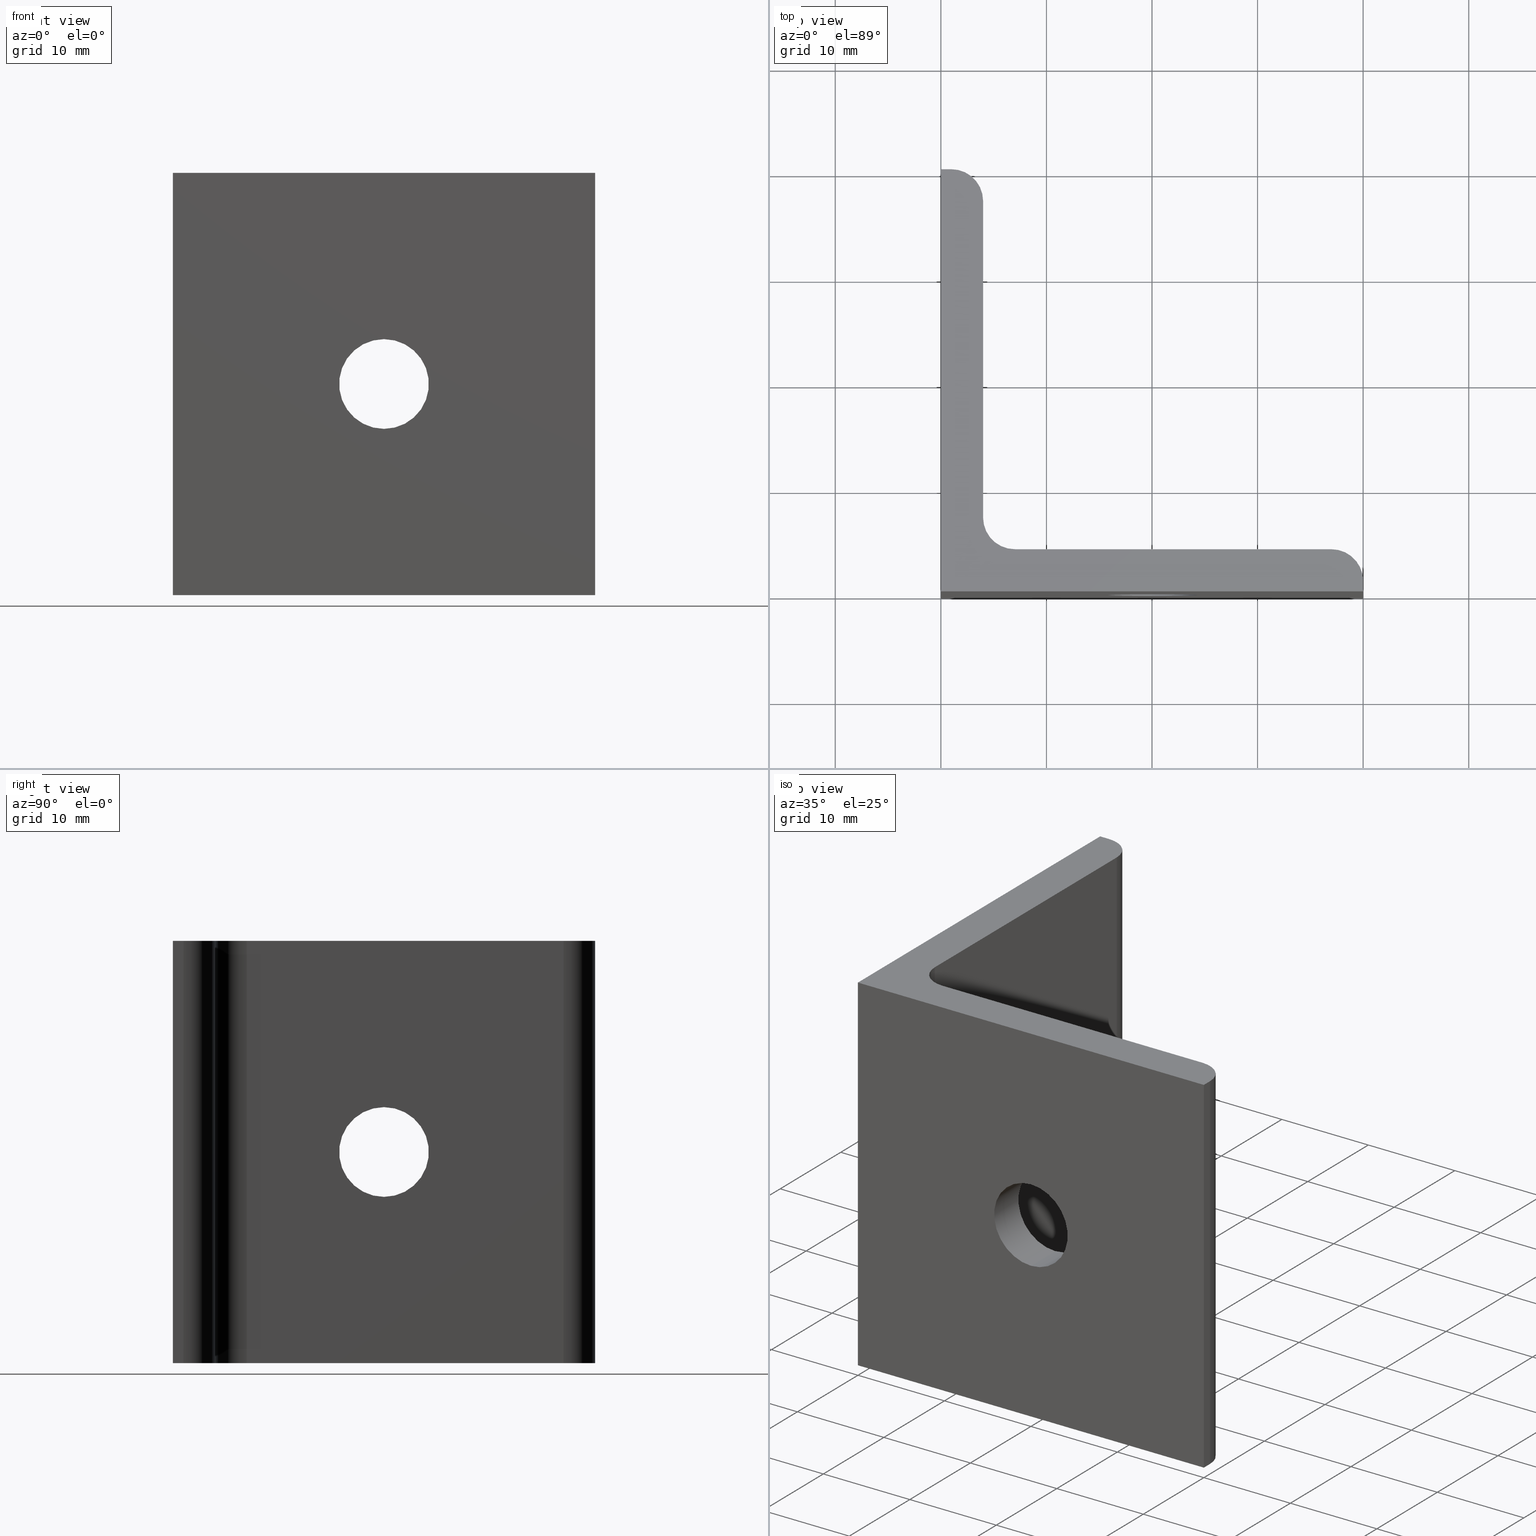
[diagram: canonical four-view strip — front | top / right | iso, engineering-drawing reading convention]
A machine part, canonical four-view strip (front | top / right | iso — engineering-drawing reading convention). The complete STEP part file that produces these views, byte-faithful:
ISO-10303-21;
HEADER;
/* Generated by software containing ST-Developer
 * from STEP Tools, Inc. (www.steptools.com) 
 */

FILE_DESCRIPTION(
/* description */ ('SQUADRETTA 40x40x40 L'),
/* implementation_level */ '2;1');

FILE_NAME(
/* name */ 
'Q:\\Catalogo\\2_Accessori Dierre\\Per Download Web e catalogo cartace
o\\CATALOGO ELEMENTI ASSEMBLAGGIO\\PAGINA 31\\DSQAL0000019.stp',
/* time_stamp */ '2018-06-11T14:54:31+02:00',
/* author */ ('fzagni'),
/* organization */ (''),
/* preprocessor_version */ 'ST-DEVELOPER v16.1',
/* originating_system */ 'Autodesk Inventor 2016',
/* authorisation */ '');

FILE_SCHEMA (('AUTOMOTIVE_DESIGN { 1 0 10303 214 3 1 1 }'));
ENDSEC;

DATA;
#10=MECHANICAL_DESIGN_GEOMETRIC_PRESENTATION_REPRESENTATION('',(#13),#410);
#11=SHAPE_REPRESENTATION_RELATIONSHIP('SRR','None',#419,#12);
#12=ADVANCED_BREP_SHAPE_REPRESENTATION('',(#14),#409);
#13=STYLED_ITEM('',(#428),#14);
#14=MANIFOLD_SOLID_BREP('Importato1',#246);
#15=LINE('',#354,#36);
#16=LINE('',#356,#37);
#17=LINE('',#358,#38);
#18=LINE('',#359,#39);
#19=LINE('',#362,#40);
#20=LINE('',#364,#41);
#21=LINE('',#365,#42);
#22=LINE('',#368,#43);
#23=LINE('',#370,#44);
#24=LINE('',#371,#45);
#25=LINE('',#376,#46);
#26=LINE('',#380,#47);
#27=LINE('',#382,#48);
#28=LINE('',#383,#49);
#29=LINE('',#388,#50);
#30=LINE('',#392,#51);
#31=LINE('',#394,#52);
#32=LINE('',#395,#53);
#33=LINE('',#400,#54);
#34=LINE('',#403,#55);
#35=LINE('',#404,#56);
#36=VECTOR('',#287,40.);
#37=VECTOR('',#288,40.);
#38=VECTOR('',#289,40.);
#39=VECTOR('',#290,40.);
#40=VECTOR('',#293,40.);
#41=VECTOR('',#294,40.);
#42=VECTOR('',#295,40.);
#43=VECTOR('',#298,1.);
#44=VECTOR('',#299,40.);
#45=VECTOR('',#300,1.);
#46=VECTOR('',#305,40.);
#47=VECTOR('',#310,30.);
#48=VECTOR('',#311,40.);
#49=VECTOR('',#312,30.);
#50=VECTOR('',#317,40.);
#51=VECTOR('',#322,30.);
#52=VECTOR('',#323,40.);
#53=VECTOR('',#324,30.);
#54=VECTOR('',#329,40.);
#55=VECTOR('',#334,1.);
#56=VECTOR('',#335,1.);
#57=PLANE('',#254);
#58=PLANE('',#255);
#59=PLANE('',#256);
#60=PLANE('',#260);
#61=PLANE('',#264);
#62=PLANE('',#268);
#63=PLANE('',#269);
#64=PLANE('',#270);
#65=FACE_BOUND('',#85,.T.);
#66=FACE_BOUND('',#87,.T.);
#67=FACE_BOUND('',#89,.T.);
#68=FACE_BOUND('',#91,.T.);
#69=FACE_BOUND('',#95,.T.);
#70=FACE_BOUND('',#98,.T.);
#71=FACE_OUTER_BOUND('',#84,.T.);
#72=FACE_OUTER_BOUND('',#86,.T.);
#73=FACE_OUTER_BOUND('',#88,.T.);
#74=FACE_OUTER_BOUND('',#90,.T.);
#75=FACE_OUTER_BOUND('',#92,.T.);
#76=FACE_OUTER_BOUND('',#93,.T.);
#77=FACE_OUTER_BOUND('',#94,.T.);
#78=FACE_OUTER_BOUND('',#96,.T.);
#79=FACE_OUTER_BOUND('',#97,.T.);
#80=FACE_OUTER_BOUND('',#99,.T.);
#81=FACE_OUTER_BOUND('',#100,.T.);
#82=FACE_OUTER_BOUND('',#101,.T.);
#83=FACE_OUTER_BOUND('',#102,.T.);
#84=EDGE_LOOP('',(#166));
#85=EDGE_LOOP('',(#167));
#86=EDGE_LOOP('',(#168));
#87=EDGE_LOOP('',(#169));
#88=EDGE_LOOP('',(#170,#171,#172,#173));
#89=EDGE_LOOP('',(#174));
#90=EDGE_LOOP('',(#175,#176,#177,#178));
#91=EDGE_LOOP('',(#179));
#92=EDGE_LOOP('',(#180,#181,#182,#183));
#93=EDGE_LOOP('',(#184,#185,#186,#187));
#94=EDGE_LOOP('',(#188,#189,#190,#191));
#95=EDGE_LOOP('',(#192));
#96=EDGE_LOOP('',(#193,#194,#195,#196));
#97=EDGE_LOOP('',(#197,#198,#199,#200));
#98=EDGE_LOOP('',(#201));
#99=EDGE_LOOP('',(#202,#203,#204,#205));
#100=EDGE_LOOP('',(#206,#207,#208,#209));
#101=EDGE_LOOP('',(#210,#211,#212,#213,#214,#215,#216,#217,#218));
#102=EDGE_LOOP('',(#219,#220,#221,#222,#223,#224,#225,#226,#227));
#103=CIRCLE('',#249,4.25);
#104=CIRCLE('',#250,4.25);
#105=CIRCLE('',#252,4.25);
#106=CIRCLE('',#253,4.25000000000001);
#107=CIRCLE('',#258,3.);
#108=CIRCLE('',#259,3.);
#109=CIRCLE('',#262,3.);
#110=CIRCLE('',#263,3.);
#111=CIRCLE('',#266,3.);
#112=CIRCLE('',#267,3.);
#113=VERTEX_POINT('',#342);
#114=VERTEX_POINT('',#344);
#115=VERTEX_POINT('',#347);
#116=VERTEX_POINT('',#349);
#117=VERTEX_POINT('',#352);
#118=VERTEX_POINT('',#353);
#119=VERTEX_POINT('',#355);
#120=VERTEX_POINT('',#357);
#121=VERTEX_POINT('',#361);
#122=VERTEX_POINT('',#363);
#123=VERTEX_POINT('',#367);
#124=VERTEX_POINT('',#369);
#125=VERTEX_POINT('',#373);
#126=VERTEX_POINT('',#375);
#127=VERTEX_POINT('',#379);
#128=VERTEX_POINT('',#381);
#129=VERTEX_POINT('',#385);
#130=VERTEX_POINT('',#387);
#131=VERTEX_POINT('',#391);
#132=VERTEX_POINT('',#393);
#133=VERTEX_POINT('',#397);
#134=VERTEX_POINT('',#399);
#135=EDGE_CURVE('',#113,#113,#103,.T.);
#136=EDGE_CURVE('',#114,#114,#104,.T.);
#137=EDGE_CURVE('',#115,#115,#105,.T.);
#138=EDGE_CURVE('',#116,#116,#106,.T.);
#139=EDGE_CURVE('',#117,#118,#15,.T.);
#140=EDGE_CURVE('',#119,#118,#16,.T.);
#141=EDGE_CURVE('',#120,#119,#17,.T.);
#142=EDGE_CURVE('',#120,#117,#18,.T.);
#143=EDGE_CURVE('',#118,#121,#19,.T.);
#144=EDGE_CURVE('',#122,#121,#20,.T.);
#145=EDGE_CURVE('',#119,#122,#21,.T.);
#146=EDGE_CURVE('',#121,#123,#22,.T.);
#147=EDGE_CURVE('',#124,#123,#23,.T.);
#148=EDGE_CURVE('',#122,#124,#24,.T.);
#149=EDGE_CURVE('',#123,#125,#107,.T.);
#150=EDGE_CURVE('',#126,#125,#25,.T.);
#151=EDGE_CURVE('',#124,#126,#108,.T.);
#152=EDGE_CURVE('',#125,#127,#26,.T.);
#153=EDGE_CURVE('',#128,#127,#27,.T.);
#154=EDGE_CURVE('',#126,#128,#28,.T.);
#155=EDGE_CURVE('',#127,#129,#109,.T.);
#156=EDGE_CURVE('',#130,#129,#29,.T.);
#157=EDGE_CURVE('',#128,#130,#110,.T.);
#158=EDGE_CURVE('',#129,#131,#30,.T.);
#159=EDGE_CURVE('',#132,#131,#31,.T.);
#160=EDGE_CURVE('',#130,#132,#32,.T.);
#161=EDGE_CURVE('',#131,#133,#111,.T.);
#162=EDGE_CURVE('',#134,#133,#33,.T.);
#163=EDGE_CURVE('',#132,#134,#112,.T.);
#164=EDGE_CURVE('',#133,#117,#34,.T.);
#165=EDGE_CURVE('',#134,#120,#35,.T.);
#166=ORIENTED_EDGE('',*,*,#135,.F.);
#167=ORIENTED_EDGE('',*,*,#136,.T.);
#168=ORIENTED_EDGE('',*,*,#137,.F.);
#169=ORIENTED_EDGE('',*,*,#138,.T.);
#170=ORIENTED_EDGE('',*,*,#139,.T.);
#171=ORIENTED_EDGE('',*,*,#140,.F.);
#172=ORIENTED_EDGE('',*,*,#141,.F.);
#173=ORIENTED_EDGE('',*,*,#142,.T.);
#174=ORIENTED_EDGE('',*,*,#136,.F.);
#175=ORIENTED_EDGE('',*,*,#143,.T.);
#176=ORIENTED_EDGE('',*,*,#144,.F.);
#177=ORIENTED_EDGE('',*,*,#145,.F.);
#178=ORIENTED_EDGE('',*,*,#140,.T.);
#179=ORIENTED_EDGE('',*,*,#138,.F.);
#180=ORIENTED_EDGE('',*,*,#146,.T.);
#181=ORIENTED_EDGE('',*,*,#147,.F.);
#182=ORIENTED_EDGE('',*,*,#148,.F.);
#183=ORIENTED_EDGE('',*,*,#144,.T.);
#184=ORIENTED_EDGE('',*,*,#149,.T.);
#185=ORIENTED_EDGE('',*,*,#150,.F.);
#186=ORIENTED_EDGE('',*,*,#151,.F.);
#187=ORIENTED_EDGE('',*,*,#147,.T.);
#188=ORIENTED_EDGE('',*,*,#152,.T.);
#189=ORIENTED_EDGE('',*,*,#153,.F.);
#190=ORIENTED_EDGE('',*,*,#154,.F.);
#191=ORIENTED_EDGE('',*,*,#150,.T.);
#192=ORIENTED_EDGE('',*,*,#137,.T.);
#193=ORIENTED_EDGE('',*,*,#155,.T.);
#194=ORIENTED_EDGE('',*,*,#156,.F.);
#195=ORIENTED_EDGE('',*,*,#157,.F.);
#196=ORIENTED_EDGE('',*,*,#153,.T.);
#197=ORIENTED_EDGE('',*,*,#158,.T.);
#198=ORIENTED_EDGE('',*,*,#159,.F.);
#199=ORIENTED_EDGE('',*,*,#160,.F.);
#200=ORIENTED_EDGE('',*,*,#156,.T.);
#201=ORIENTED_EDGE('',*,*,#135,.T.);
#202=ORIENTED_EDGE('',*,*,#161,.T.);
#203=ORIENTED_EDGE('',*,*,#162,.F.);
#204=ORIENTED_EDGE('',*,*,#163,.F.);
#205=ORIENTED_EDGE('',*,*,#159,.T.);
#206=ORIENTED_EDGE('',*,*,#164,.T.);
#207=ORIENTED_EDGE('',*,*,#142,.F.);
#208=ORIENTED_EDGE('',*,*,#165,.F.);
#209=ORIENTED_EDGE('',*,*,#162,.T.);
#210=ORIENTED_EDGE('',*,*,#141,.T.);
#211=ORIENTED_EDGE('',*,*,#145,.T.);
#212=ORIENTED_EDGE('',*,*,#148,.T.);
#213=ORIENTED_EDGE('',*,*,#151,.T.);
#214=ORIENTED_EDGE('',*,*,#154,.T.);
#215=ORIENTED_EDGE('',*,*,#157,.T.);
#216=ORIENTED_EDGE('',*,*,#160,.T.);
#217=ORIENTED_EDGE('',*,*,#163,.T.);
#218=ORIENTED_EDGE('',*,*,#165,.T.);
#219=ORIENTED_EDGE('',*,*,#139,.F.);
#220=ORIENTED_EDGE('',*,*,#164,.F.);
#221=ORIENTED_EDGE('',*,*,#161,.F.);
#222=ORIENTED_EDGE('',*,*,#158,.F.);
#223=ORIENTED_EDGE('',*,*,#155,.F.);
#224=ORIENTED_EDGE('',*,*,#152,.F.);
#225=ORIENTED_EDGE('',*,*,#149,.F.);
#226=ORIENTED_EDGE('',*,*,#146,.F.);
#227=ORIENTED_EDGE('',*,*,#143,.F.);
#228=CYLINDRICAL_SURFACE('',#248,4.25);
#229=CYLINDRICAL_SURFACE('',#251,4.25);
#230=CYLINDRICAL_SURFACE('',#257,3.);
#231=CYLINDRICAL_SURFACE('',#261,3.);
#232=CYLINDRICAL_SURFACE('',#265,3.);
#233=ADVANCED_FACE('',(#71,#65),#228,.F.);
#234=ADVANCED_FACE('',(#72,#66),#229,.F.);
#235=ADVANCED_FACE('',(#73,#67),#57,.F.);
#236=ADVANCED_FACE('',(#74,#68),#58,.F.);
#237=ADVANCED_FACE('',(#75),#59,.F.);
#238=ADVANCED_FACE('',(#76),#230,.T.);
#239=ADVANCED_FACE('',(#77,#69),#60,.F.);
#240=ADVANCED_FACE('',(#78),#231,.F.);
#241=ADVANCED_FACE('',(#79,#70),#61,.F.);
#242=ADVANCED_FACE('',(#80),#232,.T.);
#243=ADVANCED_FACE('',(#81),#62,.F.);
#244=ADVANCED_FACE('',(#82),#63,.T.);
#245=ADVANCED_FACE('',(#83),#64,.F.);
#246=CLOSED_SHELL('',(#233,#234,#235,#236,#237,#238,#239,#240,#241,#242,
#243,#244,#245));
#247=AXIS2_PLACEMENT_3D('placement',#340,#271,#272);
#248=AXIS2_PLACEMENT_3D('',#341,#273,#274);
#249=AXIS2_PLACEMENT_3D('',#343,#275,#276);
#250=AXIS2_PLACEMENT_3D('',#345,#277,#278);
#251=AXIS2_PLACEMENT_3D('',#346,#279,#280);
#252=AXIS2_PLACEMENT_3D('',#348,#281,#282);
#253=AXIS2_PLACEMENT_3D('',#350,#283,#284);
#254=AXIS2_PLACEMENT_3D('',#351,#285,#286);
#255=AXIS2_PLACEMENT_3D('',#360,#291,#292);
#256=AXIS2_PLACEMENT_3D('',#366,#296,#297);
#257=AXIS2_PLACEMENT_3D('',#372,#301,#302);
#258=AXIS2_PLACEMENT_3D('',#374,#303,#304);
#259=AXIS2_PLACEMENT_3D('',#377,#306,#307);
#260=AXIS2_PLACEMENT_3D('',#378,#308,#309);
#261=AXIS2_PLACEMENT_3D('',#384,#313,#314);
#262=AXIS2_PLACEMENT_3D('',#386,#315,#316);
#263=AXIS2_PLACEMENT_3D('',#389,#318,#319);
#264=AXIS2_PLACEMENT_3D('',#390,#320,#321);
#265=AXIS2_PLACEMENT_3D('',#396,#325,#326);
#266=AXIS2_PLACEMENT_3D('',#398,#327,#328);
#267=AXIS2_PLACEMENT_3D('',#401,#330,#331);
#268=AXIS2_PLACEMENT_3D('',#402,#332,#333);
#269=AXIS2_PLACEMENT_3D('',#405,#336,#337);
#270=AXIS2_PLACEMENT_3D('',#406,#338,#339);
#271=DIRECTION('axis',(0.,0.,1.));
#272=DIRECTION('refdir',(1.,0.,0.));
#273=DIRECTION('center_axis',(-1.,0.,0.));
#274=DIRECTION('ref_axis',(0.,1.,0.));
#275=DIRECTION('center_axis',(-1.,0.,0.));
#276=DIRECTION('ref_axis',(0.,0.,1.));
#277=DIRECTION('center_axis',(-1.,0.,0.));
#278=DIRECTION('ref_axis',(0.,-1.,0.));
#279=DIRECTION('center_axis',(0.,-1.,0.));
#280=DIRECTION('ref_axis',(1.,0.,0.));
#281=DIRECTION('center_axis',(0.,-1.,0.));
#282=DIRECTION('ref_axis',(0.,0.,-1.));
#283=DIRECTION('center_axis',(0.,-1.,0.));
#284=DIRECTION('ref_axis',(-1.,0.,0.));
#285=DIRECTION('center_axis',(1.,0.,0.));
#286=DIRECTION('ref_axis',(0.,0.,-1.));
#287=DIRECTION('',(0.,-1.,0.));
#288=DIRECTION('',(0.,0.,-1.));
#289=DIRECTION('',(0.,-1.,0.));
#290=DIRECTION('',(0.,0.,-1.));
#291=DIRECTION('center_axis',(0.,1.,0.));
#292=DIRECTION('ref_axis',(0.,0.,1.));
#293=DIRECTION('',(1.,0.,0.));
#294=DIRECTION('',(0.,0.,-1.));
#295=DIRECTION('',(1.,0.,0.));
#296=DIRECTION('center_axis',(-1.,0.,0.));
#297=DIRECTION('ref_axis',(0.,0.,1.));
#298=DIRECTION('',(0.,1.,0.));
#299=DIRECTION('',(0.,0.,-1.));
#300=DIRECTION('',(0.,1.,0.));
#301=DIRECTION('center_axis',(0.,0.,-1.));
#302=DIRECTION('ref_axis',(-1.,0.,0.));
#303=DIRECTION('center_axis',(0.,0.,1.));
#304=DIRECTION('ref_axis',(-1.,0.,0.));
#305=DIRECTION('',(0.,0.,-1.));
#306=DIRECTION('center_axis',(0.,0.,1.));
#307=DIRECTION('ref_axis',(-1.,0.,0.));
#308=DIRECTION('center_axis',(0.,-1.,0.));
#309=DIRECTION('ref_axis',(0.,0.,-1.));
#310=DIRECTION('',(-1.,0.,0.));
#311=DIRECTION('',(0.,0.,-1.));
#312=DIRECTION('',(-1.,0.,0.));
#313=DIRECTION('center_axis',(0.,0.,-1.));
#314=DIRECTION('ref_axis',(0.707106781186547,0.707106781186548,0.));
#315=DIRECTION('center_axis',(0.,0.,-1.));
#316=DIRECTION('ref_axis',(1.,0.,0.));
#317=DIRECTION('',(0.,0.,-1.));
#318=DIRECTION('center_axis',(0.,0.,-1.));
#319=DIRECTION('ref_axis',(1.,0.,0.));
#320=DIRECTION('center_axis',(-1.,0.,0.));
#321=DIRECTION('ref_axis',(0.,0.,1.));
#322=DIRECTION('',(0.,1.,0.));
#323=DIRECTION('',(0.,0.,-1.));
#324=DIRECTION('',(0.,1.,0.));
#325=DIRECTION('center_axis',(0.,0.,-1.));
#326=DIRECTION('ref_axis',(-1.,0.,0.));
#327=DIRECTION('center_axis',(0.,0.,1.));
#328=DIRECTION('ref_axis',(1.,0.,0.));
#329=DIRECTION('',(0.,0.,-1.));
#330=DIRECTION('center_axis',(0.,0.,1.));
#331=DIRECTION('ref_axis',(1.,0.,0.));
#332=DIRECTION('center_axis',(0.,-1.,0.));
#333=DIRECTION('ref_axis',(0.,0.,-1.));
#334=DIRECTION('',(-1.,0.,0.));
#335=DIRECTION('',(-1.,0.,0.));
#336=DIRECTION('center_axis',(0.,0.,1.));
#337=DIRECTION('ref_axis',(1.,0.,0.));
#338=DIRECTION('center_axis',(0.,0.,1.));
#339=DIRECTION('ref_axis',(1.,0.,0.));
#340=CARTESIAN_POINT('',(0.,0.,0.));
#341=CARTESIAN_POINT('Origin',(4.00000001000001,20.,7.105427E-15));
#342=CARTESIAN_POINT('',(4.00000000000002,20.,4.25000000000001));
#343=CARTESIAN_POINT('Origin',(4.00000000000002,20.,7.105427E-15));
#344=CARTESIAN_POINT('',(0.,20.,4.25000000000001));
#345=CARTESIAN_POINT('Origin',(0.,20.,7.105427E-15));
#346=CARTESIAN_POINT('Origin',(20.,4.00000000999999,7.105427E-15));
#347=CARTESIAN_POINT('',(20.,4.,-4.24999999999999));
#348=CARTESIAN_POINT('Origin',(20.,4.,7.105427E-15));
#349=CARTESIAN_POINT('',(20.,0.,-4.24999999999999));
#350=CARTESIAN_POINT('Origin',(20.,0.,7.105427E-15));
#351=CARTESIAN_POINT('Origin',(0.,-2.,22.));
#352=CARTESIAN_POINT('',(0.,40.,-20.));
#353=CARTESIAN_POINT('',(0.,0.,-20.));
#354=CARTESIAN_POINT('',(0.,40.,-20.));
#355=CARTESIAN_POINT('',(0.,0.,20.));
#356=CARTESIAN_POINT('',(0.,0.,20.));
#357=CARTESIAN_POINT('',(0.,40.,20.));
#358=CARTESIAN_POINT('',(0.,40.,20.));
#359=CARTESIAN_POINT('',(0.,40.,20.));
#360=CARTESIAN_POINT('Origin',(-2.,0.,-22.));
#361=CARTESIAN_POINT('',(40.,0.,-20.));
#362=CARTESIAN_POINT('',(0.,0.,-20.));
#363=CARTESIAN_POINT('',(40.,0.,20.));
#364=CARTESIAN_POINT('',(40.,0.,20.));
#365=CARTESIAN_POINT('',(0.,0.,20.));
#366=CARTESIAN_POINT('Origin',(40.,-0.050000000000001,-22.));
#367=CARTESIAN_POINT('',(40.,1.,-20.));
#368=CARTESIAN_POINT('',(40.,0.,-20.));
#369=CARTESIAN_POINT('',(40.,1.,20.));
#370=CARTESIAN_POINT('',(40.,1.,20.));
#371=CARTESIAN_POINT('',(40.,0.,20.));
#372=CARTESIAN_POINT('Origin',(37.,1.,20.00000001));
#373=CARTESIAN_POINT('',(37.,4.,-20.));
#374=CARTESIAN_POINT('Origin',(37.,1.,-20.));
#375=CARTESIAN_POINT('',(37.,4.,20.));
#376=CARTESIAN_POINT('',(37.,4.,20.));
#377=CARTESIAN_POINT('Origin',(37.,1.,20.));
#378=CARTESIAN_POINT('Origin',(5.50000000000002,4.,22.));
#379=CARTESIAN_POINT('',(7.00000000000002,4.,-20.));
#380=CARTESIAN_POINT('',(37.,4.,-20.));
#381=CARTESIAN_POINT('',(7.00000000000002,4.,20.));
#382=CARTESIAN_POINT('',(7.00000000000002,4.,20.));
#383=CARTESIAN_POINT('',(37.,4.,20.));
#384=CARTESIAN_POINT('Origin',(7.00000000000003,7.,20.00000001));
#385=CARTESIAN_POINT('',(4.00000000000002,7.,-20.));
#386=CARTESIAN_POINT('Origin',(7.00000000000002,7.,-20.));
#387=CARTESIAN_POINT('',(4.00000000000002,7.,20.));
#388=CARTESIAN_POINT('',(4.00000000000002,7.,20.));
#389=CARTESIAN_POINT('Origin',(7.00000000000002,7.,20.));
#390=CARTESIAN_POINT('Origin',(4.00000000000002,5.5,-22.));
#391=CARTESIAN_POINT('',(4.00000000000002,37.,-20.));
#392=CARTESIAN_POINT('',(4.00000000000002,7.,-20.));
#393=CARTESIAN_POINT('',(4.00000000000002,37.,20.));
#394=CARTESIAN_POINT('',(4.00000000000002,37.,20.));
#395=CARTESIAN_POINT('',(4.00000000000002,7.,20.));
#396=CARTESIAN_POINT('Origin',(1.,37.,20.00000001));
#397=CARTESIAN_POINT('',(1.,40.,-20.));
#398=CARTESIAN_POINT('Origin',(1.,37.,-20.));
#399=CARTESIAN_POINT('',(1.,40.,20.));
#400=CARTESIAN_POINT('',(1.,40.,20.));
#401=CARTESIAN_POINT('Origin',(1.,37.,20.));
#402=CARTESIAN_POINT('Origin',(-0.049999999999997,40.,22.));
#403=CARTESIAN_POINT('',(1.,40.,-20.));
#404=CARTESIAN_POINT('',(1.,40.,20.));
#405=CARTESIAN_POINT('Origin',(-2.,-2.,20.));
#406=CARTESIAN_POINT('Origin',(-2.,-2.,-20.));
#407=UNCERTAINTY_MEASURE_WITH_UNIT(LENGTH_MEASURE(0.01),#411,
'DISTANCE_ACCURACY_VALUE',
'Maximum model space distance between geometric entities at asserted c
onnectivities');
#408=UNCERTAINTY_MEASURE_WITH_UNIT(LENGTH_MEASURE(1.E-6),#411,
'DISTANCE_ACCURACY_VALUE',
'Maximum model space distance between geometric entities at asserted c
onnectivities');
#409=(
GEOMETRIC_REPRESENTATION_CONTEXT(3)
GLOBAL_UNCERTAINTY_ASSIGNED_CONTEXT((#407))
GLOBAL_UNIT_ASSIGNED_CONTEXT((#411,#414,#412))
REPRESENTATION_CONTEXT('','3D')
);
#410=(
GEOMETRIC_REPRESENTATION_CONTEXT(3)
GLOBAL_UNCERTAINTY_ASSIGNED_CONTEXT((#408))
GLOBAL_UNIT_ASSIGNED_CONTEXT((#411,#414,#412))
REPRESENTATION_CONTEXT('','3D')
);
#411=(
LENGTH_UNIT()
NAMED_UNIT(*)
SI_UNIT(.MILLI.,.METRE.)
);
#412=(
NAMED_UNIT(*)
SI_UNIT($,.STERADIAN.)
SOLID_ANGLE_UNIT()
);
#413=DIMENSIONAL_EXPONENTS(0.,0.,0.,0.,0.,0.,0.);
#414=(
CONVERSION_BASED_UNIT('degree',#416)
NAMED_UNIT(#413)
PLANE_ANGLE_UNIT()
);
#415=(
NAMED_UNIT(*)
PLANE_ANGLE_UNIT()
SI_UNIT($,.RADIAN.)
);
#416=PLANE_ANGLE_MEASURE_WITH_UNIT(PLANE_ANGLE_MEASURE(0.01745329252),#415);
#417=SHAPE_DEFINITION_REPRESENTATION(#418,#419);
#418=PRODUCT_DEFINITION_SHAPE('',$,#421);
#419=SHAPE_REPRESENTATION('',(#247),#409);
#420=PRODUCT_DEFINITION_CONTEXT('part definition',#425,'design');
#421=PRODUCT_DEFINITION('959520009252','959520009252',#422,#420);
#422=PRODUCT_DEFINITION_FORMATION('',$,#427);
#423=PRODUCT_RELATED_PRODUCT_CATEGORY('959520009252','959520009252',(#427));
#424=APPLICATION_PROTOCOL_DEFINITION('international standard',
'automotive_design',2009,#425);
#425=APPLICATION_CONTEXT(
'Core Data for Automotive Mechanical Design Process');
#426=PRODUCT_CONTEXT('part definition',#425,'mechanical');
#427=PRODUCT('959520009252','959520009252',$,(#426));
#428=PRESENTATION_STYLE_ASSIGNMENT((#429));
#429=SURFACE_STYLE_USAGE(.BOTH.,#430);
#430=SURFACE_SIDE_STYLE('',(#431));
#431=SURFACE_STYLE_FILL_AREA(#432);
#432=FILL_AREA_STYLE('',(#433));
#433=FILL_AREA_STYLE_COLOUR('',#434);
#434=COLOUR_RGB('',0.811764705882353,0.8,0.823529411764706);
ENDSEC;
END-ISO-10303-21;
